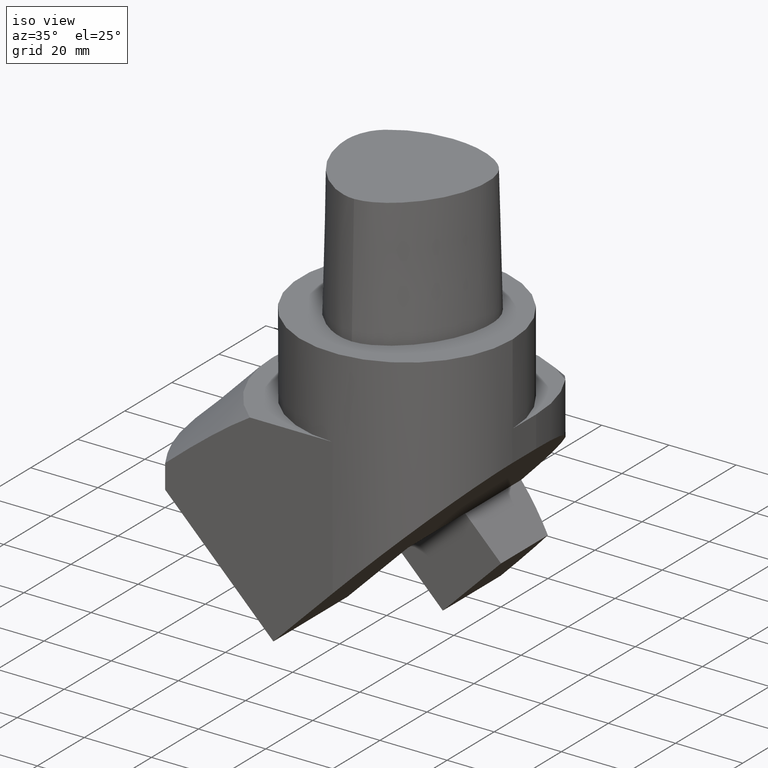
[diagram: clean part render]
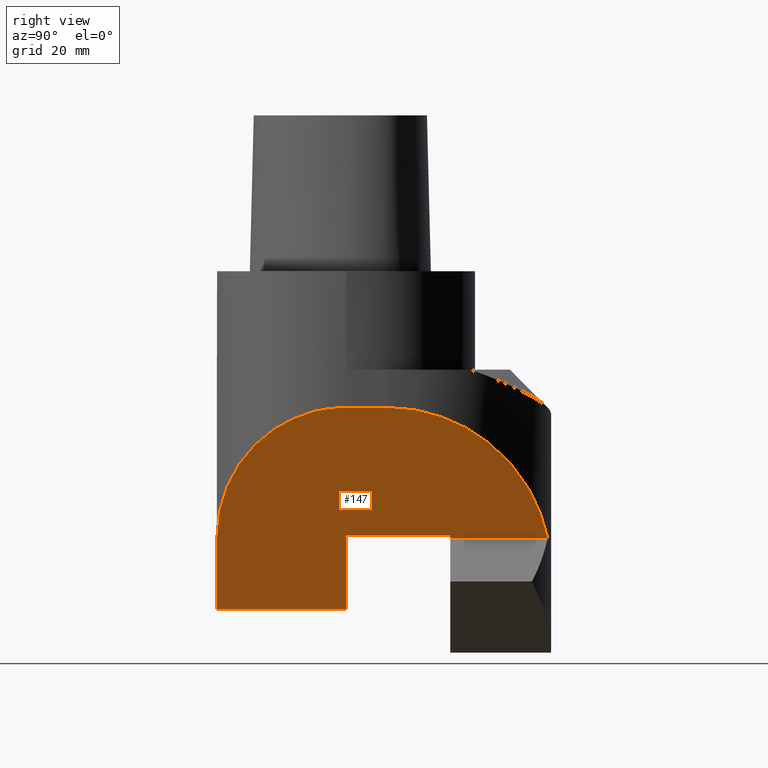
[diagram: tour spotlight — one face highlighted and labeled with its STEP entity id]
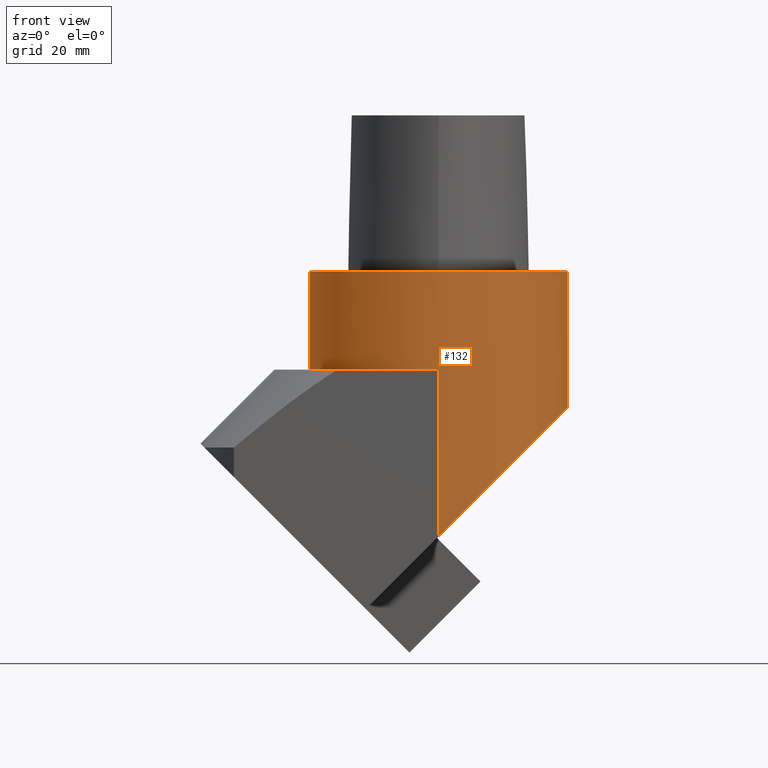
[diagram: tour spotlight — one face highlighted and labeled with its STEP entity id]
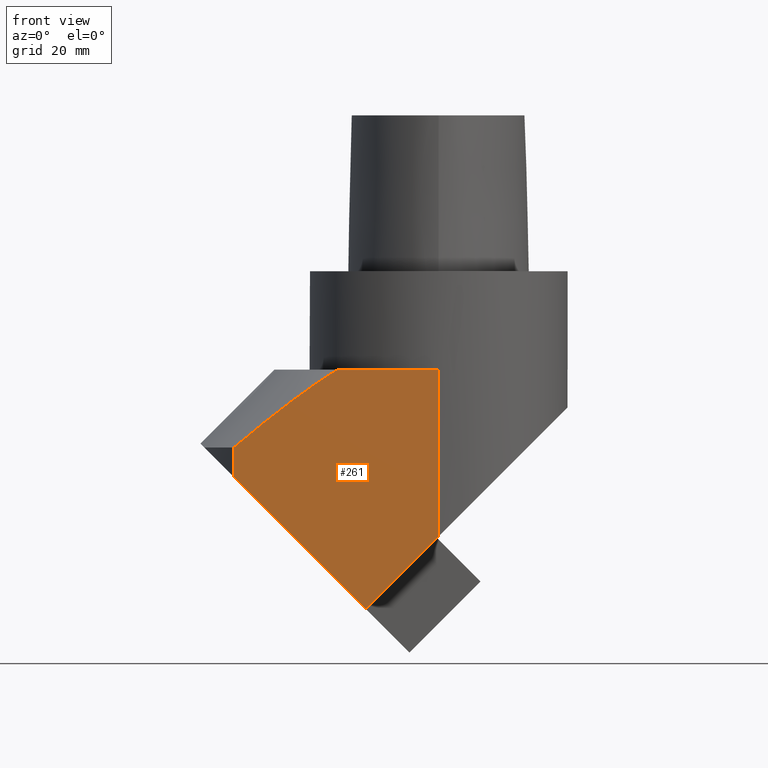
[diagram: tour spotlight — one face highlighted and labeled with its STEP entity id]
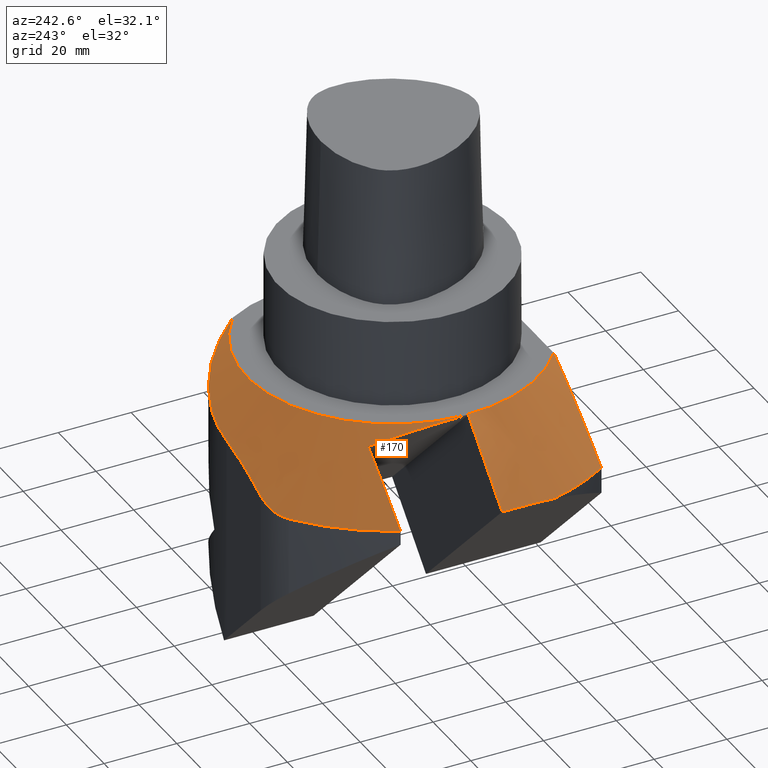
[diagram: tour spotlight — one face highlighted and labeled with its STEP entity id]
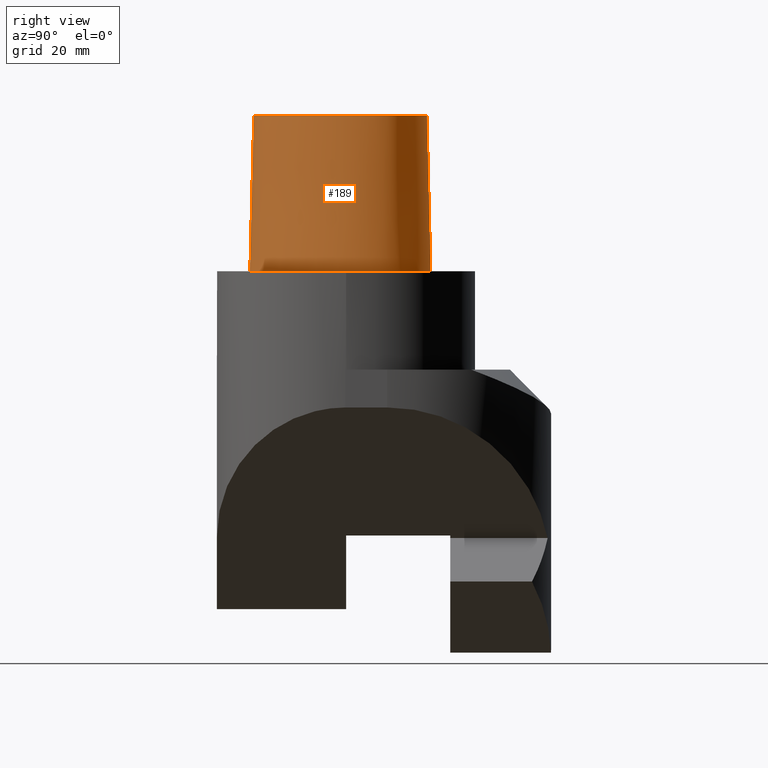
[diagram: tour spotlight — one face highlighted and labeled with its STEP entity id]
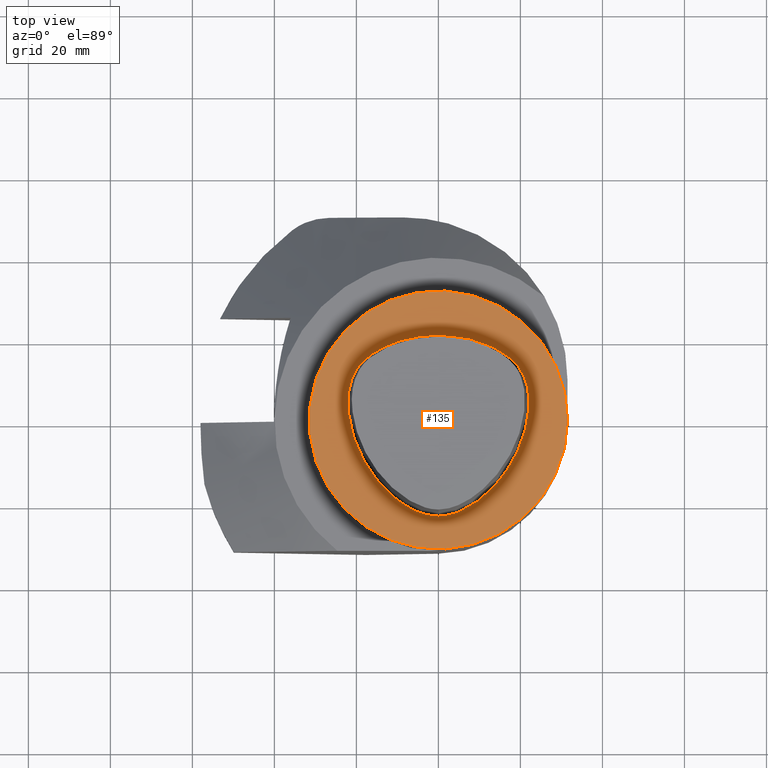
[diagram: tour spotlight — one face highlighted and labeled with its STEP entity id]
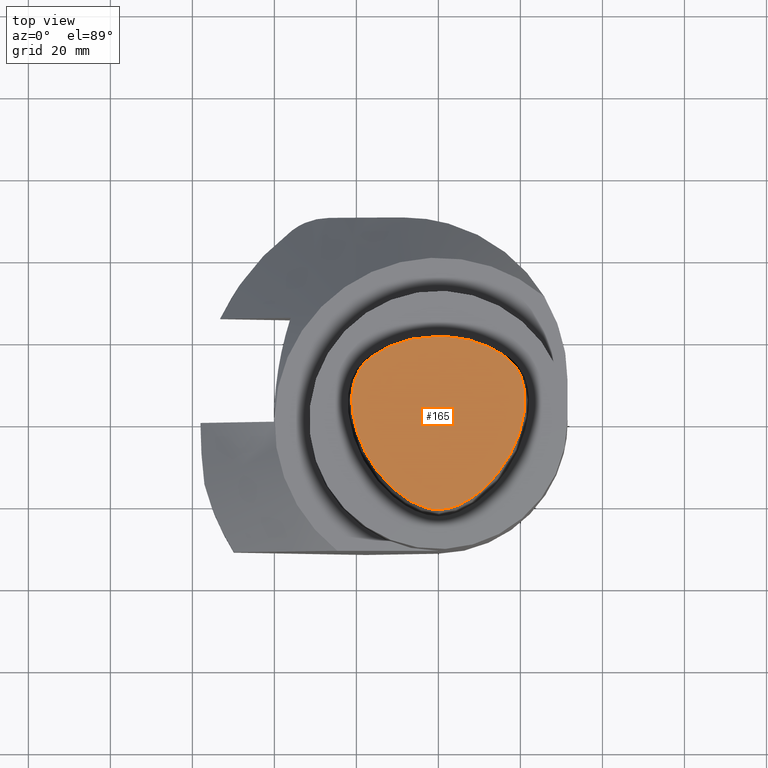
[diagram: tour spotlight — one face highlighted and labeled with its STEP entity id]
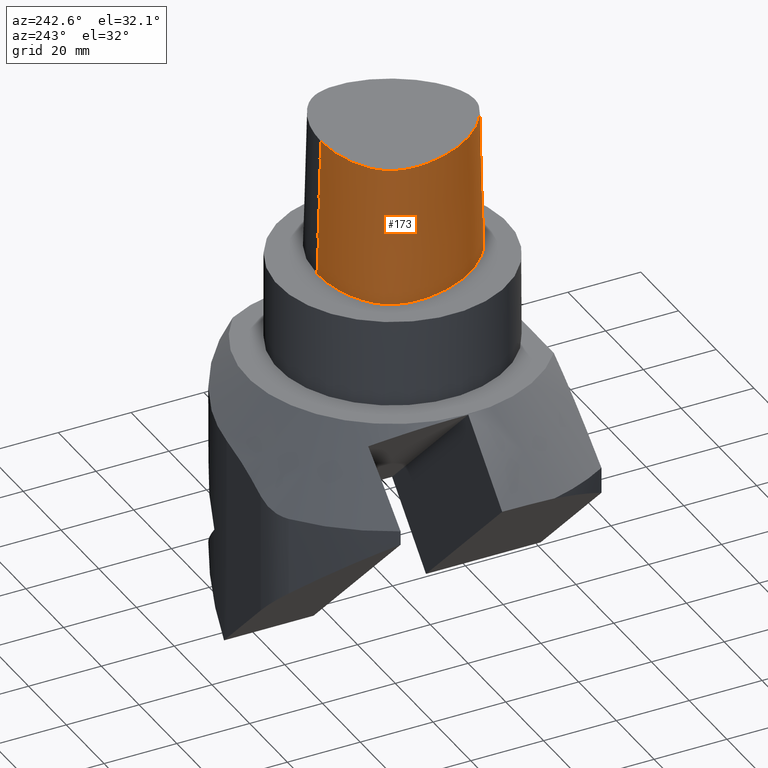
[diagram: tour spotlight — one face highlighted and labeled with its STEP entity id]
A machine part: a face-by-face anatomy tour. The part has 24 B-rep faces; the first image is the clean iso view, then the 8 largest visible faces are spotlighted one at a time (largest first), each with its STEP entity span.

Face 1 — right view, entity #147. In plain terms, the highlighted planar face has unit normal (-0.7071, 0, 0.7071).
Definition (entity closure, byte-faithful):
#117=EDGE_CURVE('Unnamed[1]',#332,#335,#336,.T.);
#129=EDGE_CURVE('Unnamed[1]',#357,#358,#359,.T.);
#147=ADVANCED_FACE('Unnamed[1]',(#387),#388,.F.);
#151=EDGE_CURVE('Unnamed[1]',#335,#393,#394,.T.);
#184=EDGE_CURVE('Unnamed[1]',#438,#396,#439,.T.);
#186=EDGE_CURVE('Unnamed[1]',#393,#357,#441,.T.);
#197=EDGE_CURVE('Unnamed[1]',#455,#353,#456,.T.);
#217=EDGE_CURVE('Unnamed[1]',#358,#378,#480,.T.);
#240=EDGE_CURVE('Unnamed[1]',#455,#332,#511,.T.);
#252=EDGE_CURVE('Unnamed[1]',#353,#438,#523,.T.);
#269=EDGE_CURVE('Unnamed[1]',#378,#396,#544,.T.);
#332=VERTEX_POINT('',#605);
#335=VERTEX_POINT('',#610);
#336=LINE('',#611,#612);
#353=VERTEX_POINT('',#644);
#357=VERTEX_POINT('',#650);
#358=VERTEX_POINT('',#651);
#359=LINE('',#652,#653);
#378=VERTEX_POINT('',#680);
#387=FACE_OUTER_BOUND('',#691,.T.);
#388=PLANE('',#692);
#393=VERTEX_POINT('',#699);
#394=LINE('',#700,#701);
#396=VERTEX_POINT('',#704);
#438=VERTEX_POINT('',#858);
#439=LINE('',#859,#860);
#441=ELLIPSE('',#863,44.5477272147526,31.5);
#455=VERTEX_POINT('',#948);
#456=LINE('',#949,#950);
#480=ELLIPSE('',#1010,56.568542494924,40.0);
#511=LINE('',#1070,#1071);
#523=LINE('',#1095,#1096);
#544=LINE('',#1126,#1127);
#605=CARTESIAN_POINT('',(-17.6776695259336,-1.50476743606326E-014,-82.3933982859317));
#610=CARTESIAN_POINT('',(-17.6776695259336,-31.4999999999999,-82.3933982859317));
#611=CARTESIAN_POINT('',(-17.6776695259336,-1.50476743606326E-014,-82.3933982859317));
#612=VECTOR('',#1255,1.0);
#644=CARTESIAN_POINT('',(0.282842716070221,9.82583075132971E-005,-64.4328860439278));
#650=CARTESIAN_POINT('',(31.4993377285877,-0.204261255196444,-33.2163910314101));
#651=CARTESIAN_POINT('',(31.4993377285877,10.0000000000001,-33.2163910314101));
#652=CARTESIAN_POINT('',(31.4993377285877,2.44893468620089,-33.2163910314101));
#653=VECTOR('',#1264,1.0);
#680=CARTESIAN_POINT('',(-0.353553386863263,49.1615195928773,-65.0692821468613));
#691=EDGE_LOOP('',(#1296,#1297,#1298,#1299,#1300,#1301,#1302,#1303,#1304,#1305));
#692=AXIS2_PLACEMENT_3D('',#1306,#1307,#1308);
#699=CARTESIAN_POINT('',(4.24599497616179E-014,-31.4999999999999,-64.7157287599979));
#700=CARTESIAN_POINT('',(-38.6934186050026,-31.5,-103.409147365001));
#701=VECTOR('',#1312,1.0);
#704=CARTESIAN_POINT('',(-0.353553386863266,25.4000947769365,-65.0692821468613));
#858=CARTESIAN_POINT('',(0.282773236954681,25.4000982581499,-64.4329555230433));
#859=CARTESIAN_POINT('',(-1.05229258903636,25.4000909542765,-65.7680213490344));
#860=VECTOR('',#1360,1.0);
#863=AXIS2_PLACEMENT_3D('',#1361,#1362,#1363);
#948=CARTESIAN_POINT('',(-0.353553386863271,-1.43833363435227E-014,-65.0692821468613));
#949=CARTESIAN_POINT('',(-1.05222310992081,9.09544340652988E-005,-65.7679518699188));
#950=VECTOR('',#1384,1.0);
#1010=AXIS2_PLACEMENT_3D('',#1413,#1414,#1415);
#1070=CARTESIAN_POINT('',(-0.353553386863271,-1.43833363435227E-014,-65.0692821468613));
#1071=VECTOR('',#1449,1.0);
#1095=CARTESIAN_POINT('',(0.282842716327699,4.12584736374977E-006,-64.4328860436703));
#1096=VECTOR('',#1454,1.0);
#1126=CARTESIAN_POINT('',(-0.353553386863271,-1.43833363435227E-014,-65.0692821468613));
#1127=VECTOR('',#1487,1.0);
#1255=DIRECTION('',(-1.83697019872103E-016,-1.0,2.22044604925031E-016));
#1264=DIRECTION('',(1.83697019872103E-016,1.0,-2.22044604925031E-016));
#1296=ORIENTED_EDGE('',*,*,#184,.T.);
#1297=ORIENTED_EDGE('',*,*,#269,.F.);
#1298=ORIENTED_EDGE('',*,*,#217,.F.);
#1299=ORIENTED_EDGE('',*,*,#129,.F.);
#1300=ORIENTED_EDGE('',*,*,#186,.F.);
#1301=ORIENTED_EDGE('',*,*,#151,.F.);
#1302=ORIENTED_EDGE('',*,*,#117,.F.);
#1303=ORIENTED_EDGE('',*,*,#240,.F.);
#1304=ORIENTED_EDGE('',*,*,#197,.T.);
#1305=ORIENTED_EDGE('',*,*,#252,.T.);
#1306=CARTESIAN_POINT('',(15.5732233065686,-1.37725829196523E-014,-49.1425054534293));
#1307=DIRECTION('',(-0.70710678118655,2.86902654303701E-016,0.707106781186546));
#1308=DIRECTION('',(0.707106781186546,2.71158374330543E-017,0.70710678118655));
#1312=DIRECTION('',(0.707106781186546,5.79426127538057E-016,0.70710678118655));
#1360=DIRECTION('',(-0.707106781181255,-3.86843730355812E-006,-0.707106781181259));
#1361=CARTESIAN_POINT('',(7.92539100804198E-015,-1.43697784249492E-014,-64.715728759998));
#1362=DIRECTION('',(-0.707106781186549,2.86902654303701E-016,0.707106781186545));
#1363=DIRECTION('',(0.707106781186546,2.71158374330543E-017,0.70710678118655));
#1384=DIRECTION('',(0.707106781181255,3.86843730355812E-006,0.707106781181259));
#1413=CARTESIAN_POINT('',(-8.5006622714123,10.0000000000001,-73.2163910314103));
#1414=DIRECTION('',(-0.70710678118655,2.86902654303701E-016,0.707106781186546));
#1415=DIRECTION('',(-0.707106781186545,-8.99847633952517E-017,-0.707106781186549));
#1449=DIRECTION('',(-0.707106781186545,-2.71158374330544E-017,-0.70710678118655));
#1454=DIRECTION('',(-2.73539824974655E-006,0.999999999992518,-2.7353982501523E-006));
#1487=DIRECTION('',(-1.83697019872103E-016,-1.0,2.22044604925031E-016));

Face 2 — front view, entity #132. In plain terms, the highlighted cylindrical surface (bore or boss wall) has radius 31.5 mm, axis along (0, -0, -1).
Definition (entity closure, byte-faithful):
#132=ADVANCED_FACE('Unnamed[1]',(#362,#363),#364,.T.);
#186=EDGE_CURVE('Unnamed[1]',#393,#357,#441,.T.);
#230=EDGE_CURVE('Unnamed[1]',#497,#488,#498,.T.);
#265=EDGE_CURVE('Unnamed[1]',#539,#494,#540,.T.);
#267=EDGE_CURVE('Unnamed[1]',#393,#497,#542,.T.);
#289=EDGE_CURVE('Unnamed[1]',#488,#539,#566,.T.);
#298=EDGE_CURVE('Unnamed[1]',#357,#494,#576,.T.);
#303=EDGE_CURVE('Unnamed[1]',#582,#582,#583,.T.);
#357=VERTEX_POINT('',#650);
#362=FACE_BOUND('',#657,.T.);
#363=FACE_BOUND('',#658,.T.);
#364=CYLINDRICAL_SURFACE('',#659,31.5);
#393=VERTEX_POINT('',#699);
#441=ELLIPSE('',#863,44.5477272147526,31.5);
#488=VERTEX_POINT('',#1022);
#494=VERTEX_POINT('',#1032);
#497=VERTEX_POINT('',#1037);
#498=CIRCLE('',#1038,31.5);
#539=VERTEX_POINT('',#1118);
#540=CIRCLE('',#1119,31.5);
#542=LINE('',#1122,#1123);
#566=CIRCLE('',#1197,31.5);
#576=LINE('',#1228,#1229);
#582=VERTEX_POINT('',#1237);
#583=CIRCLE('',#1238,31.5);
#650=CARTESIAN_POINT('',(31.4993377285877,-0.204261255196444,-33.2163910314101));
#657=EDGE_LOOP('',(#1266));
#658=EDGE_LOOP('',(#1267,#1268,#1269,#1270,#1271,#1272));
#659=AXIS2_PLACEMENT_3D('',#1273,#1274,#1275);
#699=CARTESIAN_POINT('',(4.24599497616179E-014,-31.4999999999999,-64.7157287599979));
#863=AXIS2_PLACEMENT_3D('',#1361,#1362,#1363);
#1022=CARTESIAN_POINT('',(31.4993377285877,0.204261255188516,-24.0));
#1032=CARTESIAN_POINT('',(31.4993377285877,-0.20426125519644,-24.0));
#1037=CARTESIAN_POINT('',(4.98352329636378E-014,-31.4999999999999,-24.0));
#1038=AXIS2_PLACEMENT_3D('',#1428,#1429,#1430);
#1118=CARTESIAN_POINT('',(31.5,-1.1115526644172E-014,-24.0));
#1119=AXIS2_PLACEMENT_3D('',#1483,#1484,#1485);
#1122=CARTESIAN_POINT('',(1.3300595700886E-014,-31.5,-225.691832081474));
#1123=VECTOR('',#1486,1.0);
#1197=AXIS2_PLACEMENT_3D('',#1509,#1510,#1511);
#1228=CARTESIAN_POINT('',(31.4993377285877,-0.204261255196528,-225.691832081474));
#1229=VECTOR('',#1524,1.0);
#1237=CARTESIAN_POINT('',(31.5,-5.78645612597124E-015,3.85763741731416E-015));
#1238=AXIS2_PLACEMENT_3D('',#1534,#1535,#1536);
#1266=ORIENTED_EDGE('',*,*,#303,.T.);
#1267=ORIENTED_EDGE('',*,*,#186,.T.);
#1268=ORIENTED_EDGE('',*,*,#298,.T.);
#1269=ORIENTED_EDGE('',*,*,#265,.F.);
#1270=ORIENTED_EDGE('',*,*,#289,.F.);
#1271=ORIENTED_EDGE('',*,*,#230,.F.);
#1272=ORIENTED_EDGE('',*,*,#267,.F.);
#1273=CARTESIAN_POINT('',(1.46957615897682E-015,-2.66453525910038E-015,-12.0));
#1274=DIRECTION('',(1.22464679914735E-016,-2.22044604925031E-016,-1.0));
#1275=DIRECTION('',(1.0,-1.83697019872103E-016,1.22464679914735E-016));
#1361=CARTESIAN_POINT('',(7.92539100804198E-015,-1.43697784249492E-014,-64.715728759998));
#1362=DIRECTION('',(-0.707106781186549,2.86902654303701E-016,0.707106781186545));
#1363=DIRECTION('',(0.707106781186546,2.71158374330543E-017,0.70710678118655));
#1428=CARTESIAN_POINT('',(2.93915231795365E-015,-5.32907051820075E-015,-24.0));
#1429=DIRECTION('',(1.22464679914735E-016,-2.22044604925031E-016,-1.0));
#1430=DIRECTION('',(1.0,-1.83697019872103E-016,1.22464679914735E-016));
#1483=CARTESIAN_POINT('',(2.93915231795365E-015,-5.32907051820075E-015,-24.0));
#1484=DIRECTION('',(1.22464679914735E-016,-2.22044604925031E-016,-1.0));
#1485=DIRECTION('',(1.0,-1.83697019872103E-016,1.22464679914735E-016));
#1486=DIRECTION('',(1.81140886498535E-016,4.33419372587335E-016,1.0));
#1509=CARTESIAN_POINT('',(2.93915231795365E-015,-5.32907051820075E-015,-24.0));
#1510=DIRECTION('',(1.22464679914735E-016,-2.22044604925031E-016,-1.0));
#1511=DIRECTION('',(1.0,-1.83697019872103E-016,1.22464679914735E-016));
#1524=DIRECTION('',(1.81140886498535E-016,4.33419372587335E-016,1.0));
#1534=CARTESIAN_POINT('',(0.0,0.0,0.0));
#1535=DIRECTION('',(1.22464679914735E-016,-2.22044604925031E-016,-1.0));
#1536=DIRECTION('',(1.0,-1.83697019872103E-016,1.22464679914735E-016));

Face 3 — front view, entity #261. In plain terms, the highlighted planar face has unit normal (-0, 1, -0).
Definition (entity closure, byte-faithful):
#139=EDGE_CURVE('Unnamed[1]',#374,#375,#376,.T.);
#151=EDGE_CURVE('Unnamed[1]',#335,#393,#394,.T.);
#226=EDGE_CURVE('Unnamed[1]',#374,#335,#492,.T.);
#261=ADVANCED_FACE('Unnamed[1]',(#534),#535,.F.);
#267=EDGE_CURVE('Unnamed[1]',#393,#497,#542,.T.);
#282=EDGE_CURVE('Unnamed[1]',#375,#346,#558,.T.);
#284=EDGE_CURVE('Unnamed[1]',#346,#497,#560,.T.);
#335=VERTEX_POINT('',#610);
#346=VERTEX_POINT('',#626);
#374=VERTEX_POINT('',#674);
#375=VERTEX_POINT('',#675);
#376=LINE('',#676,#677);
#393=VERTEX_POINT('',#699);
#394=LINE('',#700,#701);
#492=LINE('',#1028,#1029);
#497=VERTEX_POINT('',#1037);
#534=FACE_OUTER_BOUND('',#1110,.T.);
#535=PLANE('',#1111);
#542=LINE('',#1122,#1123);
#558=(B_SPLINE_CURVE(2,(#1177,#1178,#1179),.UNSPECIFIED.,.F.,.F.)B_SPLINE_CURVE_WITH_KNOTS((3,3),(0.0,31.6084605874461),.UNSPECIFIED.)RATIONAL_B_SPLINE_CURVE((1.0,1.03416011580737,1.0))BOUNDED_CURVE()REPRESENTATION_ITEM('')GEOMETRIC_REPRESENTATION_ITEM()CURVE());
#560=LINE('',#1188,#1189);
#610=CARTESIAN_POINT('',(-17.6776695259336,-31.4999999999999,-82.3933982859317));
#626=CARTESIAN_POINT('',(-24.6525860712422,-31.4999999999999,-24.0));
#674=CARTESIAN_POINT('',(-49.887373151931,-31.4999999999999,-50.1836946599341));
#675=CARTESIAN_POINT('',(-49.887373151931,-31.4999999999999,-43.0000000000001));
#676=CARTESIAN_POINT('',(-49.887373151931,-31.4999999999999,-68.0000000000001));
#677=VECTOR('',#1284,1.0);
#699=CARTESIAN_POINT('',(4.24599497616179E-014,-31.4999999999999,-64.7157287599979));
#700=CARTESIAN_POINT('',(-38.6934186050026,-31.5,-103.409147365001));
#701=VECTOR('',#1312,1.0);
#1028=CARTESIAN_POINT('',(8.89253621003494,-31.4999999999999,-108.963604021901));
#1029=VECTOR('',#1426,1.0);
#1037=CARTESIAN_POINT('',(4.98352329636378E-014,-31.4999999999999,-24.0));
#1110=EDGE_LOOP('',(#1473,#1474,#1475,#1476,#1477,#1478));
#1111=AXIS2_PLACEMENT_3D('',#1479,#1480,#1481);
#1122=CARTESIAN_POINT('',(1.3300595700886E-014,-31.5,-225.691832081474));
#1123=VECTOR('',#1486,1.0);
#1177=CARTESIAN_POINT('',(-49.887373151931,-31.4999999999999,-43.0000000000001));
#1178=CARTESIAN_POINT('',(-34.8484596391973,-31.4999999999999,-30.2838662676379));
#1179=CARTESIAN_POINT('',(-24.6525860712422,-31.4999999999999,-24.0));
#1188=CARTESIAN_POINT('',(5.40299114416418,-31.4999999999999,-24.0));
#1189=VECTOR('',#1500,1.0);
#1284=DIRECTION('',(-1.22464679914735E-016,2.22044604925031E-016,1.0));
#1312=DIRECTION('',(0.707106781186546,5.79426127538057E-016,0.70710678118655));
#1426=DIRECTION('',(0.707106781186545,-3.35214273701919E-017,-0.70710678118655));
#1473=ORIENTED_EDGE('',*,*,#151,.T.);
#1474=ORIENTED_EDGE('',*,*,#267,.T.);
#1475=ORIENTED_EDGE('',*,*,#284,.F.);
#1476=ORIENTED_EDGE('',*,*,#282,.F.);
#1477=ORIENTED_EDGE('',*,*,#139,.F.);
#1478=ORIENTED_EDGE('',*,*,#226,.T.);
#1479=CARTESIAN_POINT('',(-24.9440177116716,-31.5,-225.691832081474));
#1480=DIRECTION('',(-3.86012915370308E-016,1.0,-4.33419372587335E-016));
#1481=DIRECTION('',(-1.0,-3.86012915370308E-016,4.47245255327676E-016));
#1486=DIRECTION('',(1.81140886498535E-016,4.33419372587335E-016,1.0));
#1500=DIRECTION('',(1.0,3.86012915370308E-016,1.22464679914735E-016));

Face 4 — auxiliary view, entity #170. In plain terms, the highlighted conical surface has half-angle 45 deg.
Definition (entity closure, byte-faithful):
#121=EDGE_CURVE('Unnamed[1]',#342,#343,#344,.T.);
#123=EDGE_CURVE('Unnamed[1]',#346,#347,#348,.T.);
#125=EDGE_CURVE('Unnamed[1]',#342,#350,#351,.T.);
#137=EDGE_CURVE('Unnamed[1]',#331,#371,#372,.T.);
#158=EDGE_CURVE('Unnamed[1]',#375,#371,#404,.T.);
#170=ADVANCED_FACE('Unnamed[1]',(#420),#421,.T.);
#179=EDGE_CURVE('Unnamed[1]',#339,#432,#433,.T.);
#213=EDGE_CURVE('Unnamed[1]',#347,#339,#476,.T.);
#248=EDGE_CURVE('Unnamed[1]',#350,#354,#519,.T.);
#271=EDGE_CURVE('Unnamed[1]',#432,#343,#546,.T.);
#280=EDGE_CURVE('Unnamed[1]',#354,#331,#556,.T.);
#282=EDGE_CURVE('Unnamed[1]',#375,#346,#558,.T.);
#331=VERTEX_POINT('',#604);
#339=VERTEX_POINT('',#616);
#342=VERTEX_POINT('',#621);
#343=VERTEX_POINT('',#622);
#344=CIRCLE('',#623,59.0);
#346=VERTEX_POINT('',#626);
#347=VERTEX_POINT('',#627);
#348=CIRCLE('',#628,40.0);
#350=VERTEX_POINT('',#631);
#351=(B_SPLINE_CURVE(2,(#633,#634,#635),.UNSPECIFIED.,.F.,.F.)B_SPLINE_CURVE_WITH_KNOTS((3,3),(0.0,29.3420438072819),.UNSPECIFIED.)RATIONAL_B_SPLINE_CURVE((1.0,1.02650720003375,1.0))BOUNDED_CURVE()REPRESENTATION_ITEM('')GEOMETRIC_REPRESENTATION_ITEM()CURVE());
#354=VERTEX_POINT('',#645);
#371=VERTEX_POINT('',#668);
#372=B_SPLINE_CURVE_WITH_KNOTS('',2,(#669,#670,#671),.UNSPECIFIED.,.F.,.F.,(3,3),(0.0,30.0590225948833),.UNSPECIFIED.);
#375=VERTEX_POINT('',#675);
#404=CIRCLE('',#715,59.0);
#420=FACE_OUTER_BOUND('',#738,.T.);
#421=CONICAL_SURFACE('',#739,49.5,0.785398163397445);
#432=VERTEX_POINT('',#842);
#433=(B_SPLINE_CURVE(2,(#844,#845,#846),.UNSPECIFIED.,.F.,.F.)B_SPLINE_CURVE_WITH_KNOTS((3,3),(0.0,65.1766829472009),.UNSPECIFIED.)RATIONAL_B_SPLINE_CURVE((1.0,1.18,1.0))BOUNDED_CURVE()REPRESENTATION_ITEM('')GEOMETRIC_REPRESENTATION_ITEM()CURVE());
#476=B_SPLINE_CURVE_WITH_KNOTS('',3,(#980,#981,#982,#983,#984,#985,#986,#987,#988,#989,#990,#991,#992,#993,#994,#995,#996,#997,#998,#999,#1000,#1001,#1002,#1003),.UNSPECIFIED.,.F.,.F.,(4,2,2,2,2,2,2,2,2,2,2,4),(0.0,4.2961732998113,8.5923465996226,12.8885198994339,17.1846931992452,21.4808664990565,25.7770397988678,30.0732130986791,34.3693863984904,39.0400908339437,43.7107952693969,48.3814997048502),.UNSPECIFIED.);
#519=B_SPLINE_CURVE_WITH_KNOTS('',2,(#1086,#1087,#1088),.UNSPECIFIED.,.F.,.F.,(3,3),(0.0,122.475198292923),.UNSPECIFIED.);
#546=B_SPLINE_CURVE_WITH_KNOTS('',3,(#1130,#1131,#1132,#1133,#1134,#1135,#1136,#1137,#1138,#1139,#1140,#1141,#1142,#1143),.UNSPECIFIED.,.F.,.F.,(4,2,2,2,2,2,4),(25.5305772808362,27.5208219681778,29.5110666555194,31.1814105093336,32.8517543631478,34.522098216962,36.1924420707762),.UNSPECIFIED.);
#556=LINE('',#1172,#1173);
#558=(B_SPLINE_CURVE(2,(#1177,#1178,#1179),.UNSPECIFIED.,.F.,.F.)B_SPLINE_CURVE_WITH_KNOTS((3,3),(0.0,31.6084605874461),.UNSPECIFIED.)RATIONAL_B_SPLINE_CURVE((1.0,1.03416011580737,1.0))BOUNDED_CURVE()REPRESENTATION_ITEM('')GEOMETRIC_REPRESENTATION_ITEM()CURVE());
#604=CARTESIAN_POINT('',(-58.0355339059322,1.32719110625063E-015,-42.0355339059323));
#616=CARTESIAN_POINT('',(-8.50066227141228,50.0000000000001,-34.717465029836));
#621=CARTESIAN_POINT('',(-53.2525600728532,25.4000953873634,-43.0000000000001));
#622=CARTESIAN_POINT('',(-35.6541898930139,47.0082837707665,-43.0000000000002));
#623=AXIS2_PLACEMENT_3D('',#1257,#1258,#1259);
#626=CARTESIAN_POINT('',(-24.6525860712422,-31.4999999999999,-24.0));
#627=CARTESIAN_POINT('',(25.8132968265739,30.5560747960727,-24.0));
#628=AXIS2_PLACEMENT_3D('',#1260,#1261,#1262);
#631=CARTESIAN_POINT('',(-36.0503393857327,25.4001805918234,-28.0998429013501));
#633=CARTESIAN_POINT('',(-53.2528336366993,25.4000953859699,-43.0002469143508));
#634=CARTESIAN_POINT('',(-39.9314739174026,25.4001632443165,-30.9765950410345));
#635=CARTESIAN_POINT('',(-30.9001103276595,25.4002047049436,-23.999840216113));
#645=CARTESIAN_POINT('',(-40.0750216642564,0.000189712380458418,-24.0750216647054));
#668=CARTESIAN_POINT('',(-57.0710678118649,-14.9630618127947,-43.0000000000001));
#669=CARTESIAN_POINT('',(-57.0705059444844,14.9674196809995,-43.0005618673807));
#670=CARTESIAN_POINT('',(-59.0005618673805,1.71874311930324E-015,-41.0705059444845));
#671=CARTESIAN_POINT('',(-57.0705059444844,-14.9674196809995,-43.0005618673807));
#675=CARTESIAN_POINT('',(-49.887373151931,-31.4999999999999,-43.0000000000001));
#715=AXIS2_PLACEMENT_3D('',#1324,#1325,#1326);
#738=EDGE_LOOP('',(#1339,#1340,#1341,#1342,#1343,#1344,#1345,#1346,#1347,#1348,#1349));
#739=AXIS2_PLACEMENT_3D('',#1350,#1351,#1352);
#842=CARTESIAN_POINT('',(-26.665245523359,50.0000000000001,-40.6659979072198));
#844=CARTESIAN_POINT('',(31.3209195267315,50.0000000000001,-43.0000000000001));
#845=CARTESIAN_POINT('',(1.24145974672887E-014,50.0000000000001,-26.3728813559324));
#846=CARTESIAN_POINT('',(-31.3209195267314,50.0000000000001,-43.0000000000001));
#980=CARTESIAN_POINT('',(27.2899994653183,27.8613698367997,-23.0));
#981=CARTESIAN_POINT('',(26.6821631260145,29.0793539561638,-23.444791093086));
#982=CARTESIAN_POINT('',(26.0014987980239,30.2870334739513,-23.8951535010006));
#983=CARTESIAN_POINT('',(24.4975679152565,32.6512615582547,-24.7979981320429));
#984=CARTESIAN_POINT('',(23.6743113512605,33.8078153101763,-25.2504834187411));
#985=CARTESIAN_POINT('',(21.8938626107387,36.0425393210084,-26.1493398444607));
#986=CARTESIAN_POINT('',(20.9365827414916,37.1208325783875,-26.5957640263258));
#987=CARTESIAN_POINT('',(18.9014485834316,39.1755938138761,-27.4752149391517));
#988=CARTESIAN_POINT('',(17.8235979041734,40.1520627474879,-27.9082477905063));
#989=CARTESIAN_POINT('',(15.5652832260598,41.9834920679915,-28.754409218942));
#990=CARTESIAN_POINT('',(14.3837379999835,42.8393289195117,-29.1679489640365));
#991=CARTESIAN_POINT('',(11.9371929733699,44.4152781865522,-29.9701762555314));
#992=CARTESIAN_POINT('',(10.672191195817,45.1353845712279,-30.3588696200201));
#993=CARTESIAN_POINT('',(8.08351076680591,46.4288177612844,-31.1065223970256));
#994=CARTESIAN_POINT('',(6.75968047891064,47.0022064048412,-31.4655288567956));
#995=CARTESIAN_POINT('',(4.08080524351999,47.9966842613118,-32.149874496942));
#996=CARTESIAN_POINT('',(2.72575532469972,48.4177577236482,-32.4752171053672));
#997=CARTESIAN_POINT('',(-0.103438998362463,49.1382065141407,-33.1159123460463));
#998=CARTESIAN_POINT('',(-1.6218950370337,49.4350104665986,-33.4379115971524));
#999=CARTESIAN_POINT('',(-4.71652690654261,49.8511958252841,-34.0504110973686));
#1000=CARTESIAN_POINT('',(-6.29269787981296,49.9705948079215,-34.3409239460243));
#1001=CARTESIAN_POINT('',(-9.46945756842184,50.0198074910734,-34.8842018691073));
#1002=CARTESIAN_POINT('',(-11.0702841558892,49.9496390050442,-35.1370186094616));
#1003=CARTESIAN_POINT('',(-12.6667374612404,49.7824561523382,-35.36865949654));
#1086=CARTESIAN_POINT('',(-21.1500977396013,55.0790568325171,-43.0002469143508));
#1087=CARTESIAN_POINT('',(-59.0002469134678,-0.000322778344302517,-5.14979641297347));
#1088=CARTESIAN_POINT('',(-21.1494950857127,-55.0792882449815,-43.0002469143507));
#1130=CARTESIAN_POINT('',(-25.6609083706589,49.9663391276461,-40.1704305148741));
#1131=CARTESIAN_POINT('',(-26.2982878759604,50.0091113379101,-40.4996590354571));
#1132=CARTESIAN_POINT('',(-26.9490019213973,50.0112747286293,-40.806991034404));
#1133=CARTESIAN_POINT('',(-28.2409421908317,49.9310437236412,-41.3612924278872));
#1134=CARTESIAN_POINT('',(-28.8821693204896,49.8485730923342,-41.608248674316));
#1135=CARTESIAN_POINT('',(-30.0171298560223,49.6302087312511,-41.9994779002425));
#1136=CARTESIAN_POINT('',(-30.5583842725864,49.4972931565841,-42.1677820020892));
#1137=CARTESIAN_POINT('',(-31.652539640496,49.1582108889916,-42.4645785699494));
#1138=CARTESIAN_POINT('',(-32.2054276351395,48.951982407167,-42.5930482055045));
#1139=CARTESIAN_POINT('',(-33.2892228300164,48.4712417950096,-42.7987481582133));
#1140=CARTESIAN_POINT('',(-33.8206142130225,48.1964737240837,-42.876059199236));
#1141=CARTESIAN_POINT('',(-34.8323519201604,47.5954195221414,-42.9768854842985));
#1142=CARTESIAN_POINT('',(-35.3126970517297,47.2691314877365,-43.0004013484086));
#1143=CARTESIAN_POINT('',(-35.7555872155457,46.9317093460784,-43.0004013484086));
#1172=CARTESIAN_POINT('',(-49.5000435649744,0.000138150003633015,-33.5000435652319));
#1173=VECTOR('',#1499,1.0);
#1177=CARTESIAN_POINT('',(-49.887373151931,-31.4999999999999,-43.0000000000001));
#1178=CARTESIAN_POINT('',(-34.8484596391973,-31.4999999999999,-30.2838662676379));
#1179=CARTESIAN_POINT('',(-24.6525860712422,-31.4999999999999,-24.0));
#1257=CARTESIAN_POINT('',(5.26598123633363E-015,-9.54791801177637E-015,-43.0000000000001));
#1258=DIRECTION('',(1.22464679914735E-016,-2.22044604925031E-016,-1.0));
#1259=DIRECTION('',(1.0,-1.83697019872103E-016,1.22464679914735E-016));
#1260=CARTESIAN_POINT('',(2.93915231795365E-015,-5.32907051820075E-015,-24.0));
#1261=DIRECTION('',(1.22464679914735E-016,-2.22044604925031E-016,-1.0));
#1262=DIRECTION('',(1.0,-1.83697019872103E-016,1.22464679914735E-016));
#1324=CARTESIAN_POINT('',(5.26598123633363E-015,-9.54791801177637E-015,-43.0000000000001));
#1325=DIRECTION('',(1.22464679914735E-016,-2.22044604925031E-016,-1.0));
#1326=DIRECTION('',(1.0,-1.83697019872103E-016,1.22464679914735E-016));
#1339=ORIENTED_EDGE('',*,*,#125,.T.);
#1340=ORIENTED_EDGE('',*,*,#248,.T.);
#1341=ORIENTED_EDGE('',*,*,#280,.T.);
#1342=ORIENTED_EDGE('',*,*,#137,.T.);
#1343=ORIENTED_EDGE('',*,*,#158,.F.);
#1344=ORIENTED_EDGE('',*,*,#282,.T.);
#1345=ORIENTED_EDGE('',*,*,#123,.T.);
#1346=ORIENTED_EDGE('',*,*,#213,.T.);
#1347=ORIENTED_EDGE('',*,*,#179,.T.);
#1348=ORIENTED_EDGE('',*,*,#271,.T.);
#1349=ORIENTED_EDGE('',*,*,#121,.F.);
#1350=CARTESIAN_POINT('',(4.10256677714364E-015,-7.43849426498856E-015,-33.5000000000001));
#1351=DIRECTION('',(1.22464679914735E-016,-2.22044604925031E-016,-1.0));
#1352=DIRECTION('',(1.0,-1.83697019872103E-016,1.22464679914735E-016));
#1499=DIRECTION('',(-0.707106781188491,-3.86843730354172E-006,-0.707106781174023));

Face 5 — right view, entity #189. In plain terms, the highlighted face is a freeform B-spline surface patch.
Definition (entity closure, byte-faithful):
#177=EDGE_CURVE('Unnamed[1]',#324,#429,#430,.T.);
#189=ADVANCED_FACE('Unnamed[1]',(#444),#445,.T.);
#211=EDGE_CURVE('Unnamed[1]',#471,#324,#474,.T.);
#263=EDGE_CURVE('Unnamed[1]',#504,#429,#537,.T.);
#278=EDGE_CURVE('Unnamed[1]',#504,#471,#554,.T.);
#324=VERTEX_POINT('',#595);
#429=VERTEX_POINT('',#822);
#430=B_SPLINE_CURVE_WITH_KNOTS('',3,(#823,#824,#825,#826,#827,#828,#829,#830,#831,#832,#833,#834,#835,#836,#837,#838,#839),.UNSPECIFIED.,.F.,.F.,(4,1,1,1,1,1,1,1,1,1,1,1,1,1,4),(-13.2302678617486,-12.816821991069,-12.4033761203893,-11.9899302497097,-11.57648437903,-11.1630385083504,-10.9563155730106,-10.7495926376707,-10.3361467669911,-9.92270089631145,-9.09580915495216,-8.26891741359287,-7.44202567223358,-7.02857980155394,-6.6151339308743),.UNSPECIFIED.);
#444=FACE_OUTER_BOUND('',#867,.T.);
#445=B_SPLINE_SURFACE_WITH_KNOTS('',3,3,((#868,#869,#870,#871),(#872,#873,#874,#875),(#876,#877,#878,#879),(#880,#881,#882,#883),(#884,#885,#886,#887),(#888,#889,#890,#891),(#892,#893,#894,#895),(#896,#897,#898,#899),(#900,#901,#902,#903),(#904,#905,#906,#907),(#908,#909,#910,#911),(#912,#913,#914,#915),(#916,#917,#918,#919),(#920,#921,#922,#923),(#924,#925,#926,#927),(#928,#929,#930,#931),(#932,#933,#934,#935)),.UNSPECIFIED.,.F.,.F.,.F.,(4,1,1,1,1,1,1,1,1,1,1,1,1,1,4),(4,4),(-13.2302678617486,-12.816821991069,-12.4033761203893,-11.9899302497097,-11.57648437903,-11.1630385083504,-10.9563155730106,-10.7495926376707,-10.3361467669911,-9.92270089631145,-9.09580915495216,-8.26891741359287,-7.44202567223358,-7.02857980155394,-6.6151339308743),(-3.8,0.0),.UNSPECIFIED.);
#471=VERTEX_POINT('',#971);
#474=LINE('',#976,#977);
#504=VERTEX_POINT('',#1046);
#537=LINE('',#1114,#1115);
#554=B_SPLINE_CURVE_WITH_KNOTS('',3,(#1154,#1155,#1156,#1157,#1158,#1159,#1160,#1161,#1162,#1163,#1164,#1165,#1166,#1167,#1168,#1169),.UNSPECIFIED.,.F.,.F.,(4,1,1,1,1,1,1,1,1,1,1,1,1,4),(6.61513393087476,6.99917207152274,7.48193246986995,7.96289324787093,8.45540287038584,9.10291653679981,9.67129810936083,10.1618749681153,10.6358867802489,11.1080734988593,11.6043706019633,12.09451993853,12.6985979284494,13.2302678617486),.UNSPECIFIED.);
#595=CARTESIAN_POINT('',(0.044682985379347,20.6765087343109,7.88860905221012E-031));
#822=CARTESIAN_POINT('',(0.04359356758149,-23.4691235068931,0.0));
#823=CARTESIAN_POINT('',(0.044682985379347,20.6765087343109,7.88860905221012E-031));
#824=CARTESIAN_POINT('',(1.42379272427753,20.6097915814392,7.88860905221012E-031));
#825=CARTESIAN_POINT('',(4.2230955003445,20.4837538303966,7.88860905221012E-031));
#826=CARTESIAN_POINT('',(8.47220762821777,19.6890432607088,7.88860905221012E-031));
#827=CARTESIAN_POINT('',(12.5141247708253,18.2434968480404,0.0));
#828=CARTESIAN_POINT('',(16.3038624872874,16.1734192182143,0.0));
#829=CARTESIAN_POINT('',(19.1446913988473,13.7036723639434,0.0));
#830=CARTESIAN_POINT('',(20.7319894342149,11.1014620996188,0.0));
#831=CARTESIAN_POINT('',(21.7831756505763,8.28099229708081,3.94430452610506E-031));
#832=CARTESIAN_POINT('',(22.2258240701438,4.60865440596506,3.94430452610506E-031));
#833=CARTESIAN_POINT('',(21.7436130080666,-1.11326526354485,1.97215226305253E-031));
#834=CARTESIAN_POINT('',(19.5519487660502,-7.95432366164584,0.0));
#835=CARTESIAN_POINT('',(14.9574167123838,-15.2089785567293,-3.94430452610506E-031));
#836=CARTESIAN_POINT('',(9.66840283021945,-20.0827414369705,0.0));
#837=CARTESIAN_POINT('',(4.51628650521788,-22.7946374572188,0.0));
#838=CARTESIAN_POINT('',(1.55867251738073,-23.4612972770043,-7.88860905221012E-031));
#839=CARTESIAN_POINT('',(0.04359356758149,-23.4691235068931,0.0));
#867=EDGE_LOOP('',(#1365,#1366,#1367,#1368));
#868=CARTESIAN_POINT('',(-0.001218367817519,19.7276822012873,38.0));
#869=CARTESIAN_POINT('',(0.014082083248157,20.0439577123075,25.3333333333066));
#870=CARTESIAN_POINT('',(0.029382534313671,20.3602332232908,12.6666666666934));
#871=CARTESIAN_POINT('',(0.044682985379347,20.6765087343109,7.88860905221012E-031));
#872=CARTESIAN_POINT('',(1.37788651195108,19.6609652834875,38.0));
#873=CARTESIAN_POINT('',(1.3931885827258,19.9772407169847,25.3333333333066));
#874=CARTESIAN_POINT('',(1.40849065356095,20.2935162254648,12.6666666666934));
#875=CARTESIAN_POINT('',(1.42379272427753,20.6097915814392,7.88860905221012E-031));
#876=CARTESIAN_POINT('',(4.135446440878,19.5347778787784,38.0));
#877=CARTESIAN_POINT('',(4.16466278851883,19.8511031866125,25.3333333333066));
#878=CARTESIAN_POINT('',(4.1938791526746,20.1674284644204,12.6666666666934));
#879=CARTESIAN_POINT('',(4.2230955003445,20.4837538303966,7.88860905221012E-031));
#880=CARTESIAN_POINT('',(8.213607363795,18.7706026638736,38.0));
#881=CARTESIAN_POINT('',(8.29980745008421,19.0767495109635,25.3333333333066));
#882=CARTESIAN_POINT('',(8.38600751285747,19.3828964329996,12.6666666666934));
#883=CARTESIAN_POINT('',(8.47220762821777,19.6890432607088,7.88860905221012E-031));
#884=CARTESIAN_POINT('',(12.1316338645671,17.3698624840857,38.0));
#885=CARTESIAN_POINT('',(12.2591308270381,17.6610739397708,25.3333333333066));
#886=CARTESIAN_POINT('',(12.3866278083543,17.9522853923553,12.6666666666934));
#887=CARTESIAN_POINT('',(12.5141247708253,18.2434968480404,0.0));
#888=CARTESIAN_POINT('',(15.7706546153679,15.3789501349612,38.0));
#889=CARTESIAN_POINT('',(15.9483905900895,15.6437731794811,25.3333333333066));
#890=CARTESIAN_POINT('',(16.1261265513272,15.9085961736944,12.6666666666934));
#891=CARTESIAN_POINT('',(16.3038624872874,16.1734192182143,0.0));
#892=CARTESIAN_POINT('',(18.4265894256284,13.0570022172893,38.0));
#893=CARTESIAN_POINT('',(18.6659567517146,13.2725589420689,25.3333333333066));
#894=CARTESIAN_POINT('',(18.9053240921419,13.4881156488541,12.6666666666934));
#895=CARTESIAN_POINT('',(19.1446913988473,13.7036723639434,0.0));
#896=CARTESIAN_POINT('',(19.8679958653038,10.6923771981998,38.0));
#897=CARTESIAN_POINT('',(20.1559937048299,10.8287388264873,25.3333333333066));
#898=CARTESIAN_POINT('',(20.4439915656177,10.965100461641,12.6666666666934));
#899=CARTESIAN_POINT('',(20.7319894342149,11.1014620996188,0.0));
#900=CARTESIAN_POINT('',(20.8470867582337,8.07149548576131,38.0));
#901=CARTESIAN_POINT('',(21.1591164072431,8.14132775555392,25.3333333333066));
#902=CARTESIAN_POINT('',(21.4711459821861,8.21116003697855,12.6666666666934));
#903=CARTESIAN_POINT('',(21.7831756505763,8.28099229708081,3.94430452610506E-031));
#904=CARTESIAN_POINT('',(21.2693244256982,4.61157245650171,38.0));
#905=CARTESIAN_POINT('',(21.5881576801997,4.6105997689982,25.3333333333066));
#906=CARTESIAN_POINT('',(21.9069908544037,4.60962709346857,12.6666666666934));
#907=CARTESIAN_POINT('',(22.2258240701438,4.60865440596506,3.94430452610506E-031));
#908=CARTESIAN_POINT('',(20.8071610855575,-0.912828649855193,38.0));
#909=CARTESIAN_POINT('',(21.119311671178,-0.979640884839481,25.3333333333066));
#910=CARTESIAN_POINT('',(21.4314624224461,-1.04645306732201,12.6666666666934));
#911=CARTESIAN_POINT('',(21.7436130080666,-1.11326526354485,1.97215226305253E-031));
#912=CARTESIAN_POINT('',(18.6841935581315,-7.54428794252837,38.0));
#913=CARTESIAN_POINT('',(18.9734452551861,-7.6809665891091,25.3333333333066));
#914=CARTESIAN_POINT('',(19.2626970689956,-7.81764505382656,12.6666666666934));
#915=CARTESIAN_POINT('',(19.5519487660502,-7.95432366164584,0.0));
#916=CARTESIAN_POINT('',(14.2175552814,-14.5971504342323,38.0));
#917=CARTESIAN_POINT('',(14.4641757465198,-14.8010930946929,25.3333333333066));
#918=CARTESIAN_POINT('',(14.710796247264,-15.0050359737917,12.6666666666934));
#919=CARTESIAN_POINT('',(14.9574167123838,-15.2089785567293,-3.94430452610506E-031));
#920=CARTESIAN_POINT('',(9.0844808732933,-19.3179298129689,38.0));
#921=CARTESIAN_POINT('',(9.27912152349017,-19.572866915557,25.3333333333066));
#922=CARTESIAN_POINT('',(9.47376218971294,-19.827804295621,12.6666666666934));
#923=CARTESIAN_POINT('',(9.66840283021945,-20.0827414369705,0.0));
#924=CARTESIAN_POINT('',(4.17112919194182,-21.8987568152736,38.0));
#925=CARTESIAN_POINT('',(4.28618163483998,-22.1973837173649,25.3333333333066));
#926=CARTESIAN_POINT('',(4.40123406239433,-22.4960105163661,12.6666666666934));
#927=CARTESIAN_POINT('',(4.51628650521788,-22.7946374572188,0.0));
#928=CARTESIAN_POINT('',(1.41533654381097,-22.5120888467812,38.0));
#929=CARTESIAN_POINT('',(1.46311520162011,-22.8284916374445,25.3333333333066));
#930=CARTESIAN_POINT('',(1.51089385942236,-23.144894486341,12.6666666666934));
#931=CARTESIAN_POINT('',(1.55867251738073,-23.4612972770043,-7.88860905221012E-031));
#932=CARTESIAN_POINT('',(0.038736923393866,-22.5191997536361,38.0));
#933=CARTESIAN_POINT('',(0.04035580478973,-22.8358410047159,25.3333333333066));
#934=CARTESIAN_POINT('',(0.041974686185626,-23.1524822558133,12.6666666666934));
#935=CARTESIAN_POINT('',(0.04359356758149,-23.4691235068931,0.0));
#971=CARTESIAN_POINT('',(-0.001218547003662,19.7276821925089,38.0));
#976=CARTESIAN_POINT('',(-0.001218547003662,19.7276821925089,38.0));
#977=VECTOR('',#1411,38.0118715503078);
#1046=CARTESIAN_POINT('',(0.038736923393866,-22.5191997536361,38.0));
#1114=CARTESIAN_POINT('',(0.038736923393866,-22.5191997536361,38.0));
#1115=VECTOR('',#1482,38.0118715498723);
#1154=CARTESIAN_POINT('',(0.038736923394311,-22.519199753636,38.0));
#1155=CARTESIAN_POINT('',(1.31742058183662,-22.512662269405,38.0));
#1156=CARTESIAN_POINT('',(4.2093773447498,-21.9116226439989,38.0));
#1157=CARTESIAN_POINT('',(8.20895504542113,-19.7798683845067,38.0));
#1158=CARTESIAN_POINT('',(11.9784633234593,-16.681663904162,38.0));
#1159=CARTESIAN_POINT('',(15.5308821579362,-12.5807487594113,38.0));
#1160=CARTESIAN_POINT('',(18.4566248438667,-7.64932246015528,38.0));
#1161=CARTESIAN_POINT('',(20.4036090752029,-2.27012499825289,38.0));
#1162=CARTESIAN_POINT('',(21.2357187429189,2.79891401173156,38.0));
#1163=CARTESIAN_POINT('',(21.0811206267748,7.62543090736657,38.0));
#1164=CARTESIAN_POINT('',(19.3383577336563,12.2772250726194,38.0));
#1165=CARTESIAN_POINT('',(15.5796322014404,15.5799672120682,38.0));
#1166=CARTESIAN_POINT('',(10.8392956074438,17.9834601687347,38.0));
#1167=CARTESIAN_POINT('',(5.56068045850571,19.4586143858472,38.0));
#1168=CARTESIAN_POINT('',(1.77223893711014,19.6418877095654,38.0));
#1169=CARTESIAN_POINT('',(-0.001218367817519,19.7276822012873,38.0));
#1365=ORIENTED_EDGE('',*,*,#177,.F.);
#1366=ORIENTED_EDGE('',*,*,#211,.F.);
#1367=ORIENTED_EDGE('',*,*,#278,.F.);
#1368=ORIENTED_EDGE('',*,*,#263,.T.);
#1411=DIRECTION('',(0.001207557810519,0.024961321374199,-0.999687688350411));
#1482=DIRECTION('',(0.000127766510556,-0.024990186342461,-0.999687688361864));

Face 6 — top view, entity #135. In plain terms, the highlighted planar face has unit normal (-0, 0, 1).
Definition (entity closure, byte-faithful):
#110=EDGE_CURVE('Unnamed[1]',#323,#324,#325,.T.);
#135=ADVANCED_FACE('Unnamed[1]',(#367,#368),#369,.T.);
#177=EDGE_CURVE('Unnamed[1]',#324,#429,#430,.T.);
#296=EDGE_CURVE('Unnamed[1]',#429,#323,#574,.T.);
#303=EDGE_CURVE('Unnamed[1]',#582,#582,#583,.T.);
#323=VERTEX_POINT('',#594);
#324=VERTEX_POINT('',#595);
#325=CIRCLE('',#596,0.949936168436318);
#367=FACE_BOUND('',#663,.T.);
#368=FACE_OUTER_BOUND('',#664,.T.);
#369=PLANE('',#665);
#429=VERTEX_POINT('',#822);
#430=B_SPLINE_CURVE_WITH_KNOTS('',3,(#823,#824,#825,#826,#827,#828,#829,#830,#831,#832,#833,#834,#835,#836,#837,#838,#839),.UNSPECIFIED.,.F.,.F.,(4,1,1,1,1,1,1,1,1,1,1,1,1,1,4),(-13.2302678617486,-12.816821991069,-12.4033761203893,-11.9899302497097,-11.57648437903,-11.1630385083504,-10.9563155730106,-10.7495926376707,-10.3361467669911,-9.92270089631145,-9.09580915495216,-8.26891741359287,-7.44202567223358,-7.02857980155394,-6.6151339308743),.UNSPECIFIED.);
#574=B_SPLINE_CURVE_WITH_KNOTS('',3,(#1208,#1209,#1210,#1211,#1212,#1213,#1214,#1215,#1216,#1217,#1218,#1219,#1220,#1221,#1222,#1223,#1224,#1225),.UNSPECIFIED.,.F.,.F.,(4,1,1,1,1,1,1,1,1,2,1,1,1,1,4),(-6.6151339308743,-6.20168806019465,-5.78824218951501,-5.37479631883537,-4.96135044815572,-4.13445870679644,-3.30756696543715,-2.89412109475751,-2.48067522407786,-2.06722935339822,-1.65378348271857,-1.24033761203893,-0.826891741359287,-0.413445870679644,0.0),.UNSPECIFIED.);
#582=VERTEX_POINT('',#1237);
#583=CIRCLE('',#1238,31.5);
#594=CARTESIAN_POINT('',(-0.045171994691285,20.6766009553285,7.88860905221012E-031));
#595=CARTESIAN_POINT('',(0.044682985379347,20.6765087343109,7.88860905221012E-031));
#596=AXIS2_PLACEMENT_3D('',#1243,#1244,#1245);
#663=EDGE_LOOP('',(#1277,#1278,#1279));
#664=EDGE_LOOP('',(#1280));
#665=AXIS2_PLACEMENT_3D('',#1281,#1282,#1283);
#822=CARTESIAN_POINT('',(0.04359356758149,-23.4691235068931,0.0));
#823=CARTESIAN_POINT('',(0.044682985379347,20.6765087343109,7.88860905221012E-031));
#824=CARTESIAN_POINT('',(1.42379272427753,20.6097915814392,7.88860905221012E-031));
#825=CARTESIAN_POINT('',(4.2230955003445,20.4837538303966,7.88860905221012E-031));
#826=CARTESIAN_POINT('',(8.47220762821777,19.6890432607088,7.88860905221012E-031));
#827=CARTESIAN_POINT('',(12.5141247708253,18.2434968480404,0.0));
#828=CARTESIAN_POINT('',(16.3038624872874,16.1734192182143,0.0));
#829=CARTESIAN_POINT('',(19.1446913988473,13.7036723639434,0.0));
#830=CARTESIAN_POINT('',(20.7319894342149,11.1014620996188,0.0));
#831=CARTESIAN_POINT('',(21.7831756505763,8.28099229708081,3.94430452610506E-031));
#832=CARTESIAN_POINT('',(22.2258240701438,4.60865440596506,3.94430452610506E-031));
#833=CARTESIAN_POINT('',(21.7436130080666,-1.11326526354485,1.97215226305253E-031));
#834=CARTESIAN_POINT('',(19.5519487660502,-7.95432366164584,0.0));
#835=CARTESIAN_POINT('',(14.9574167123838,-15.2089785567293,-3.94430452610506E-031));
#836=CARTESIAN_POINT('',(9.66840283021945,-20.0827414369705,0.0));
#837=CARTESIAN_POINT('',(4.51628650521788,-22.7946374572188,0.0));
#838=CARTESIAN_POINT('',(1.55867251738073,-23.4612972770043,-7.88860905221012E-031));
#839=CARTESIAN_POINT('',(0.04359356758149,-23.4691235068931,0.0));
#1208=CARTESIAN_POINT('',(0.04359356758149,-23.4691235068931,0.0));
#1209=CARTESIAN_POINT('',(-1.4714994713963,-23.4767895315797,0.0));
#1210=CARTESIAN_POINT('',(-4.43923476371401,-22.821149804767,0.0));
#1211=CARTESIAN_POINT('',(-8.35043230079961,-20.8000751253325,-7.88860905221012E-031));
#1212=CARTESIAN_POINT('',(-11.744900222602,-18.1556117874078,0.0));
#1213=CARTESIAN_POINT('',(-15.6989602501314,-14.0406306929147,-3.94430452610506E-031));
#1214=CARTESIAN_POINT('',(-19.5352875070682,-8.00624990770787,-7.88860905221012E-031));
#1215=CARTESIAN_POINT('',(-21.7205626190491,-1.16081708945282,4.93038065763132E-032));
#1216=CARTESIAN_POINT('',(-22.2486616783342,4.54965558738736,3.94430452610506E-031));
#1217=CARTESIAN_POINT('',(-21.6646421256468,9.00229539124618,0.0));
#1218=CARTESIAN_POINT('',(-20.3945635471922,11.7780544971003,-3.94430452610506E-031));
#1219=CARTESIAN_POINT('',(-18.5925528034471,14.1980602922581,-3.94430452610506E-031));
#1220=CARTESIAN_POINT('',(-16.3226584122258,16.1777748720707,0.0));
#1221=CARTESIAN_POINT('',(-12.5076407874579,18.2524201541303,0.0));
#1222=CARTESIAN_POINT('',(-8.46776192107786,19.679114377952,0.0));
#1223=CARTESIAN_POINT('',(-4.23043497193604,20.487781597334,0.0));
#1224=CARTESIAN_POINT('',(-1.42313094248379,20.6127745766442,7.88860905221012E-031));
#1225=CARTESIAN_POINT('',(-0.045171994691285,20.6766009553285,7.88860905221012E-031));
#1237=CARTESIAN_POINT('',(31.5,-5.78645612597124E-015,3.85763741731416E-015));
#1238=AXIS2_PLACEMENT_3D('',#1534,#1535,#1536);
#1243=CARTESIAN_POINT('',(-0.001218547003662,19.7276821925089,1.8366743104099E-015));
#1244=DIRECTION('',(1.22464679914735E-016,-2.22044604925031E-016,-1.0));
#1245=DIRECTION('',(-0.046269895968506,0.998928974816059,-2.2747321756067E-016));
#1277=ORIENTED_EDGE('',*,*,#177,.T.);
#1278=ORIENTED_EDGE('',*,*,#296,.T.);
#1279=ORIENTED_EDGE('',*,*,#110,.T.);
#1280=ORIENTED_EDGE('',*,*,#303,.F.);
#1281=CARTESIAN_POINT('',(15.75,-2.89322806298562E-015,1.92881870865708E-015));
#1282=DIRECTION('',(-1.22464679914735E-016,2.22044604925031E-016,1.0));
#1283=DIRECTION('',(-1.0,1.83697019872103E-016,-1.22464679914735E-016));
#1534=CARTESIAN_POINT('',(0.0,0.0,0.0));
#1535=DIRECTION('',(1.22464679914735E-016,-2.22044604925031E-016,-1.0));
#1536=DIRECTION('',(1.0,-1.83697019872103E-016,1.22464679914735E-016));

Face 7 — top view, entity #165. In plain terms, the highlighted planar face has unit normal (0, 0, 1).
Definition (entity closure, byte-faithful):
#165=ADVANCED_FACE('Unnamed[1]',(#414),#415,.T.);
#235=EDGE_CURVE('Unnamed[1]',#471,#504,#505,.T.);
#278=EDGE_CURVE('Unnamed[1]',#504,#471,#554,.T.);
#414=FACE_OUTER_BOUND('',#729,.T.);
#415=PLANE('',#730);
#471=VERTEX_POINT('',#971);
#504=VERTEX_POINT('',#1046);
#505=B_SPLINE_CURVE_WITH_KNOTS('',3,(#1047,#1048,#1049,#1050,#1051,#1052,#1053,#1054,#1055,#1056,#1057,#1058,#1059,#1060,#1061,#1062),.UNSPECIFIED.,.F.,.F.,(4,1,1,1,1,1,1,1,1,1,1,1,1,4),(0.0,0.447924670568964,0.9388024242536,1.50591409090711,2.07314340012323,2.72424957442464,3.2253501842849,3.80982102049476,4.34867996267067,4.85900173381144,5.37972031856977,6.03459825488646,6.61113557741484,6.61513393087395),.UNSPECIFIED.);
#554=B_SPLINE_CURVE_WITH_KNOTS('',3,(#1154,#1155,#1156,#1157,#1158,#1159,#1160,#1161,#1162,#1163,#1164,#1165,#1166,#1167,#1168,#1169),.UNSPECIFIED.,.F.,.F.,(4,1,1,1,1,1,1,1,1,1,1,1,1,4),(6.61513393087476,6.99917207152274,7.48193246986995,7.96289324787093,8.45540287038584,9.10291653679981,9.67129810936083,10.1618749681153,10.6358867802489,11.1080734988593,11.6043706019633,12.09451993853,12.6985979284494,13.2302678617486),.UNSPECIFIED.);
#729=EDGE_LOOP('',(#1332,#1333));
#730=AXIS2_PLACEMENT_3D('',#1334,#1335,#1336);
#971=CARTESIAN_POINT('',(-0.001218547003662,19.7276821925089,38.0));
#1046=CARTESIAN_POINT('',(0.038736923393866,-22.5191997536361,38.0));
#1047=CARTESIAN_POINT('',(-0.001218547003662,19.7276821925089,38.0));
#1048=CARTESIAN_POINT('',(-1.49408492138443,19.6585333605309,38.0));
#1049=CARTESIAN_POINT('',(-4.62297391420352,19.513604770166,38.0));
#1050=CARTESIAN_POINT('',(-9.56160616752212,18.4291575730197,38.0));
#1051=CARTESIAN_POINT('',(-14.5427684976927,16.2697452580488,38.0));
#1052=CARTESIAN_POINT('',(-19.4315563551602,12.5302108980807,38.0));
#1053=CARTESIAN_POINT('',(-21.306358833612,6.76352894547076,38.0));
#1054=CARTESIAN_POINT('',(-21.0724946936277,0.957075236984038,38.0));
#1055=CARTESIAN_POINT('',(-19.7876470880144,-4.34628503581652,38.0));
#1056=CARTESIAN_POINT('',(-17.5396999600095,-9.33314444653089,38.0));
#1057=CARTESIAN_POINT('',(-14.645447733857,-13.7185760345629,38.0));
#1058=CARTESIAN_POINT('',(-10.7996726536643,-17.856257282137,38.0));
#1059=CARTESIAN_POINT('',(-6.00479510196376,-21.2687382067675,38.0));
#1060=CARTESIAN_POINT('',(-1.90747171908525,-22.5250621415864,38.0));
#1061=CARTESIAN_POINT('',(0.025424107066464,-22.5192678176378,38.0));
#1062=CARTESIAN_POINT('',(0.038736923394311,-22.519199753636,38.0));
#1154=CARTESIAN_POINT('',(0.038736923394311,-22.519199753636,38.0));
#1155=CARTESIAN_POINT('',(1.31742058183662,-22.512662269405,38.0));
#1156=CARTESIAN_POINT('',(4.2093773447498,-21.9116226439989,38.0));
#1157=CARTESIAN_POINT('',(8.20895504542113,-19.7798683845067,38.0));
#1158=CARTESIAN_POINT('',(11.9784633234593,-16.681663904162,38.0));
#1159=CARTESIAN_POINT('',(15.5308821579362,-12.5807487594113,38.0));
#1160=CARTESIAN_POINT('',(18.4566248438667,-7.64932246015528,38.0));
#1161=CARTESIAN_POINT('',(20.4036090752029,-2.27012499825289,38.0));
#1162=CARTESIAN_POINT('',(21.2357187429189,2.79891401173156,38.0));
#1163=CARTESIAN_POINT('',(21.0811206267748,7.62543090736657,38.0));
#1164=CARTESIAN_POINT('',(19.3383577336563,12.2772250726194,38.0));
#1165=CARTESIAN_POINT('',(15.5796322014404,15.5799672120682,38.0));
#1166=CARTESIAN_POINT('',(10.8392956074438,17.9834601687347,38.0));
#1167=CARTESIAN_POINT('',(5.56068045850571,19.4586143858472,38.0));
#1168=CARTESIAN_POINT('',(1.77223893711014,19.6418877095654,38.0));
#1169=CARTESIAN_POINT('',(-0.001218367817519,19.7276822012873,38.0));
#1332=ORIENTED_EDGE('',*,*,#235,.T.);
#1333=ORIENTED_EDGE('',*,*,#278,.T.);
#1334=CARTESIAN_POINT('',(0.008647668684817,1.77491953635526,38.0));
#1335=DIRECTION('',(8.51487437290651E-033,0.0,1.0));
#1336=DIRECTION('',(1.0,0.0,-8.51487437290651E-033));

Face 8 — auxiliary view, entity #173. In plain terms, the highlighted face is a freeform B-spline surface patch.
Definition (entity closure, byte-faithful):
#173=ADVANCED_FACE('Unnamed[1]',(#424),#425,.T.);
#209=EDGE_CURVE('Unnamed[1]',#471,#323,#472,.T.);
#235=EDGE_CURVE('Unnamed[1]',#471,#504,#505,.T.);
#263=EDGE_CURVE('Unnamed[1]',#504,#429,#537,.T.);
#296=EDGE_CURVE('Unnamed[1]',#429,#323,#574,.T.);
#323=VERTEX_POINT('',#594);
#424=FACE_OUTER_BOUND('',#743,.T.);
#425=B_SPLINE_SURFACE_WITH_KNOTS('',3,3,((#744,#745,#746,#747),(#748,#749,#750,#751),(#752,#753,#754,#755),(#756,#757,#758,#759),(#760,#761,#762,#763),(#764,#765,#766,#767),(#768,#769,#770,#771),(#772,#773,#774,#775),(#776,#777,#778,#779),(#780,#781,#782,#783),(#784,#785,#786,#787),(#788,#789,#790,#791),(#792,#793,#794,#795),(#796,#797,#798,#799),(#800,#801,#802,#803),(#804,#805,#806,#807),(#808,#809,#810,#811),(#812,#813,#814,#815)),.UNSPECIFIED.,.F.,.F.,.F.,(4,1,1,1,1,1,1,1,1,2,1,1,1,1,4),(4,4),(-6.6151339308743,-6.20168806019465,-5.78824218951501,-5.37479631883537,-4.96135044815572,-4.13445870679644,-3.30756696543715,-2.89412109475751,-2.48067522407786,-2.06722935339822,-1.65378348271857,-1.24033761203893,-0.826891741359287,-0.413445870679644,0.0),(-3.8,0.0),.UNSPECIFIED.);
#429=VERTEX_POINT('',#822);
#471=VERTEX_POINT('',#971);
#472=LINE('',#972,#973);
#504=VERTEX_POINT('',#1046);
#505=B_SPLINE_CURVE_WITH_KNOTS('',3,(#1047,#1048,#1049,#1050,#1051,#1052,#1053,#1054,#1055,#1056,#1057,#1058,#1059,#1060,#1061,#1062),.UNSPECIFIED.,.F.,.F.,(4,1,1,1,1,1,1,1,1,1,1,1,1,4),(0.0,0.447924670568964,0.9388024242536,1.50591409090711,2.07314340012323,2.72424957442464,3.2253501842849,3.80982102049476,4.34867996267067,4.85900173381144,5.37972031856977,6.03459825488646,6.61113557741484,6.61513393087395),.UNSPECIFIED.);
#537=LINE('',#1114,#1115);
#574=B_SPLINE_CURVE_WITH_KNOTS('',3,(#1208,#1209,#1210,#1211,#1212,#1213,#1214,#1215,#1216,#1217,#1218,#1219,#1220,#1221,#1222,#1223,#1224,#1225),.UNSPECIFIED.,.F.,.F.,(4,1,1,1,1,1,1,1,1,2,1,1,1,1,4),(-6.6151339308743,-6.20168806019465,-5.78824218951501,-5.37479631883537,-4.96135044815572,-4.13445870679644,-3.30756696543715,-2.89412109475751,-2.48067522407786,-2.06722935339822,-1.65378348271857,-1.24033761203893,-0.826891741359287,-0.413445870679644,0.0),.UNSPECIFIED.);
#594=CARTESIAN_POINT('',(-0.045171994691285,20.6766009553285,7.88860905221012E-031));
#743=EDGE_LOOP('',(#1354,#1355,#1356,#1357));
#744=CARTESIAN_POINT('',(0.038736923393866,-22.5191997536361,38.0));
#745=CARTESIAN_POINT('',(0.04035580478973,-22.8358410047159,25.3333333333066));
#746=CARTESIAN_POINT('',(0.041974686185626,-23.1524822558133,12.6666666666934));
#747=CARTESIAN_POINT('',(0.04359356758149,-23.4691235068931,0.0));
#748=CARTESIAN_POINT('',(-1.33786123484754,-22.5261650259856,38.0));
#749=CARTESIAN_POINT('',(-1.38240731367927,-22.8430399310626,25.3333333333066));
#750=CARTESIAN_POINT('',(-1.42695339249092,-23.1599147815484,12.6666666666934));
#751=CARTESIAN_POINT('',(-1.4714994713963,-23.4767895315797,0.0));
#752=CARTESIAN_POINT('',(-4.08909358431842,-21.9268839879558,38.0));
#753=CARTESIAN_POINT('',(-4.20580731135515,-22.2249725500078,25.3333333333066));
#754=CARTESIAN_POINT('',(-4.32252104640446,-22.5230611651922,12.6666666666934));
#755=CARTESIAN_POINT('',(-4.43923476371401,-22.821149804767,0.0));
#756=CARTESIAN_POINT('',(-7.8333083619947,-19.9973514861616,38.0));
#757=CARTESIAN_POINT('',(-8.00568301809614,-20.2649260859405,25.3333333333066));
#758=CARTESIAN_POINT('',(-8.1780576640789,-20.532500564315,12.6666666666934));
#759=CARTESIAN_POINT('',(-8.35043230079961,-20.8000751253325,-7.88860905221012E-031));
#760=CARTESIAN_POINT('',(-11.1035071147626,-17.450554957873,38.0));
#761=CARTESIAN_POINT('',(-11.3173048160562,-17.6855739222454,25.3333333333066));
#762=CARTESIAN_POINT('',(-11.5311025116181,-17.9205928617968,12.6666666666934));
#763=CARTESIAN_POINT('',(-11.744900222602,-18.1556117874078,0.0));
#764=CARTESIAN_POINT('',(-14.9379535189057,-13.461132049697,38.0));
#765=CARTESIAN_POINT('',(-15.191622410671,-13.6542981711372,25.3333333333066));
#766=CARTESIAN_POINT('',(-15.4452913389853,-13.8474645327131,12.6666666666934));
#767=CARTESIAN_POINT('',(-15.6989602501314,-14.0406306929147,-3.94430452610506E-031));
#768=CARTESIAN_POINT('',(-18.6681263017223,-7.59391757463204,38.0));
#769=CARTESIAN_POINT('',(-18.9571800800711,-7.73136168081928,25.3333333333066));
#770=CARTESIAN_POINT('',(-19.2462337287194,-7.86880572399774,12.6666666666934));
#771=CARTESIAN_POINT('',(-19.5352875070682,-8.00624990770787,-7.88860905221012E-031));
#772=CARTESIAN_POINT('',(-20.7857899858339,-0.952862819790525,38.0));
#773=CARTESIAN_POINT('',(-21.0973808305434,-1.02218087467418,25.3333333333066));
#774=CARTESIAN_POINT('',(-21.408971677436,-1.09149899580772,12.6666666666934));
#775=CARTESIAN_POINT('',(-21.7205626190491,-1.16081708945282,4.93038065763132E-032));
#776=CARTESIAN_POINT('',(-21.2911760556836,4.5469215763113,38.0));
#777=CARTESIAN_POINT('',(-21.610337904926,4.54783292082248,25.3333333333066));
#778=CARTESIAN_POINT('',(-21.9294998290918,4.54874426225691,12.6666666666934));
#779=CARTESIAN_POINT('',(-22.2486616783342,4.54965558738736,3.94430452610506E-031));
#780=CARTESIAN_POINT('',(-20.7345309521958,8.74909381391006,38.0));
#781=CARTESIAN_POINT('',(-21.0445680426217,8.83349432450556,25.3333333333066));
#782=CARTESIAN_POINT('',(-21.3546050933631,8.91789488065068,12.6666666666934));
#783=CARTESIAN_POINT('',(-21.6646421256468,9.00229539124618,0.0));
#784=CARTESIAN_POINT('',(-19.5531512296439,11.3174844040833,38.0));
#785=CARTESIAN_POINT('',(-19.8336219699984,11.4710077674213,25.3333333333066));
#786=CARTESIAN_POINT('',(-20.1140927680763,11.6245311337623,12.6666666666934));
#787=CARTESIAN_POINT('',(-20.3945635471922,11.7780544971003,-3.94430452610506E-031));
#788=CARTESIAN_POINT('',(-17.9100913688793,13.524027510437,38.0));
#789=CARTESIAN_POINT('',(-18.1375785458768,13.7487051053655,25.3333333333066));
#790=CARTESIAN_POINT('',(-18.365065665211,13.9733826973296,12.6666666666934));
#791=CARTESIAN_POINT('',(-18.5925528034471,14.1980602922581,-3.94430452610506E-031));
#792=CARTESIAN_POINT('',(-15.7996349656398,15.3762170634413,38.0));
#793=CARTESIAN_POINT('',(-15.9739761051783,15.6434029846179,25.3333333333066));
#794=CARTESIAN_POINT('',(-16.1483172726872,15.9105889315134,12.6666666666934));
#795=CARTESIAN_POINT('',(-16.3226584122258,16.1777748720707,0.0));
#796=CARTESIAN_POINT('',(-12.1175640002064,17.3825162484012,38.0));
#797=CARTESIAN_POINT('',(-12.2475895903055,17.6724842099619,25.3333333333066));
#798=CARTESIAN_POINT('',(-12.3776152070492,17.9624521925696,12.6666666666934));
#799=CARTESIAN_POINT('',(-12.5076407874579,18.2524201541303,0.0));
#800=CARTESIAN_POINT('',(-8.21761151654222,18.7588585989994,38.0));
#801=CARTESIAN_POINT('',(-8.30099497910627,19.0656105427881,25.3333333333066));
#802=CARTESIAN_POINT('',(-8.38437843913309,19.3723624535439,12.6666666666934));
#803=CARTESIAN_POINT('',(-8.46776192107786,19.679114377952,0.0));
#804=CARTESIAN_POINT('',(-4.13466093881225,19.5396850837055,38.0));
#805=CARTESIAN_POINT('',(-4.16658562115465,19.8557172636973,25.3333333333066));
#806=CARTESIAN_POINT('',(-4.19851029939059,20.1717494367229,12.6666666666934));
#807=CARTESIAN_POINT('',(-4.23043497193604,20.487781597334,0.0));
#808=CARTESIAN_POINT('',(-1.37917220403684,19.6638560588908,38.0));
#809=CARTESIAN_POINT('',(-1.39382511685176,19.98016223565,25.3333333333066));
#810=CARTESIAN_POINT('',(-1.40847802945569,20.296468399885,12.6666666666934));
#811=CARTESIAN_POINT('',(-1.42313094248379,20.6127745766442,7.88860905221012E-031));
#812=CARTESIAN_POINT('',(-0.001218547003662,19.7276821925089,38.0));
#813=CARTESIAN_POINT('',(-0.015869696232855,20.043988446791,25.3333333333066));
#814=CARTESIAN_POINT('',(-0.030520845462092,20.3602947010464,12.6666666666934));
#815=CARTESIAN_POINT('',(-0.045171994691285,20.6766009553285,7.88860905221012E-031));
#822=CARTESIAN_POINT('',(0.04359356758149,-23.4691235068931,0.0));
#971=CARTESIAN_POINT('',(-0.001218547003662,19.7276821925089,38.0));
#972=CARTESIAN_POINT('',(-0.001218547003662,19.7276821925089,38.0));
#973=VECTOR('',#1410,38.0118715498723);
#1046=CARTESIAN_POINT('',(0.038736923393866,-22.5191997536361,38.0));
#1047=CARTESIAN_POINT('',(-0.001218547003662,19.7276821925089,38.0));
#1048=CARTESIAN_POINT('',(-1.49408492138443,19.6585333605309,38.0));
#1049=CARTESIAN_POINT('',(-4.62297391420352,19.513604770166,38.0));
#1050=CARTESIAN_POINT('',(-9.56160616752212,18.4291575730197,38.0));
#1051=CARTESIAN_POINT('',(-14.5427684976927,16.2697452580488,38.0));
#1052=CARTESIAN_POINT('',(-19.4315563551602,12.5302108980807,38.0));
#1053=CARTESIAN_POINT('',(-21.306358833612,6.76352894547076,38.0));
#1054=CARTESIAN_POINT('',(-21.0724946936277,0.957075236984038,38.0));
#1055=CARTESIAN_POINT('',(-19.7876470880144,-4.34628503581652,38.0));
#1056=CARTESIAN_POINT('',(-17.5396999600095,-9.33314444653089,38.0));
#1057=CARTESIAN_POINT('',(-14.645447733857,-13.7185760345629,38.0));
#1058=CARTESIAN_POINT('',(-10.7996726536643,-17.856257282137,38.0));
#1059=CARTESIAN_POINT('',(-6.00479510196376,-21.2687382067675,38.0));
#1060=CARTESIAN_POINT('',(-1.90747171908525,-22.5250621415864,38.0));
#1061=CARTESIAN_POINT('',(0.025424107066464,-22.5192678176378,38.0));
#1062=CARTESIAN_POINT('',(0.038736923394311,-22.519199753636,38.0));
#1114=CARTESIAN_POINT('',(0.038736923393866,-22.5191997536361,38.0));
#1115=VECTOR('',#1482,38.0118715498723);
#1208=CARTESIAN_POINT('',(0.04359356758149,-23.4691235068931,0.0));
#1209=CARTESIAN_POINT('',(-1.4714994713963,-23.4767895315797,0.0));
#1210=CARTESIAN_POINT('',(-4.43923476371401,-22.821149804767,0.0));
#1211=CARTESIAN_POINT('',(-8.35043230079961,-20.8000751253325,-7.88860905221012E-031));
#1212=CARTESIAN_POINT('',(-11.744900222602,-18.1556117874078,0.0));
#1213=CARTESIAN_POINT('',(-15.6989602501314,-14.0406306929147,-3.94430452610506E-031));
#1214=CARTESIAN_POINT('',(-19.5352875070682,-8.00624990770787,-7.88860905221012E-031));
#1215=CARTESIAN_POINT('',(-21.7205626190491,-1.16081708945282,4.93038065763132E-032));
#1216=CARTESIAN_POINT('',(-22.2486616783342,4.54965558738736,3.94430452610506E-031));
#1217=CARTESIAN_POINT('',(-21.6646421256468,9.00229539124618,0.0));
#1218=CARTESIAN_POINT('',(-20.3945635471922,11.7780544971003,-3.94430452610506E-031));
#1219=CARTESIAN_POINT('',(-18.5925528034471,14.1980602922581,-3.94430452610506E-031));
#1220=CARTESIAN_POINT('',(-16.3226584122258,16.1777748720707,0.0));
#1221=CARTESIAN_POINT('',(-12.5076407874579,18.2524201541303,0.0));
#1222=CARTESIAN_POINT('',(-8.46776192107786,19.679114377952,0.0));
#1223=CARTESIAN_POINT('',(-4.23043497193604,20.487781597334,0.0));
#1224=CARTESIAN_POINT('',(-1.42313094248379,20.6127745766442,7.88860905221012E-031));
#1225=CARTESIAN_POINT('',(-0.045171994691285,20.6766009553285,7.88860905221012E-031));
#1354=ORIENTED_EDGE('',*,*,#296,.F.);
#1355=ORIENTED_EDGE('',*,*,#263,.F.);
#1356=ORIENTED_EDGE('',*,*,#235,.F.);
#1357=ORIENTED_EDGE('',*,*,#209,.T.);
#1410=DIRECTION('',(-0.001156308434589,0.02496374748543,-0.999687688361864));
#1482=DIRECTION('',(0.000127766510556,-0.024990186342461,-0.999687688361864));